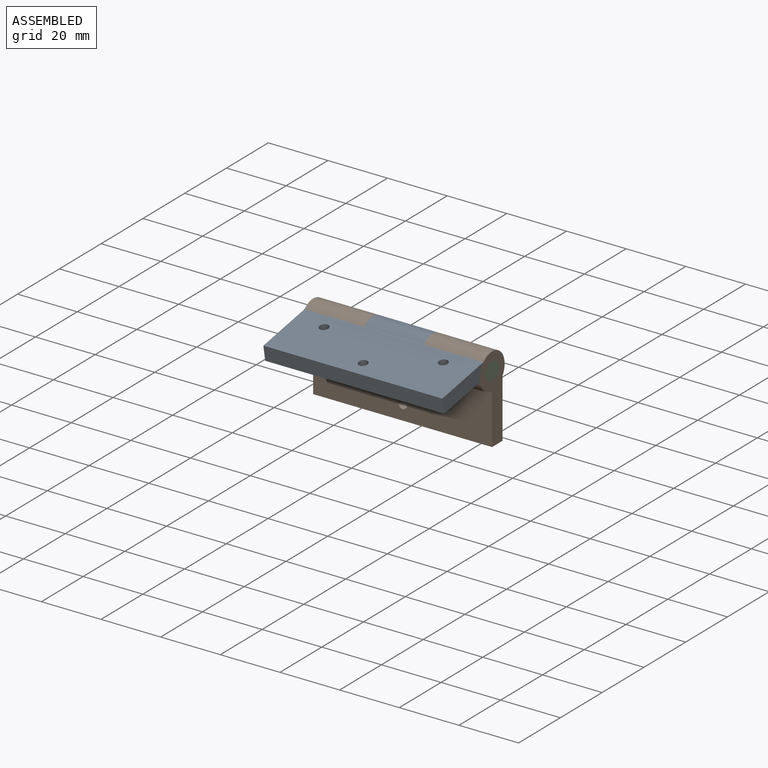
[diagram: assembled view]
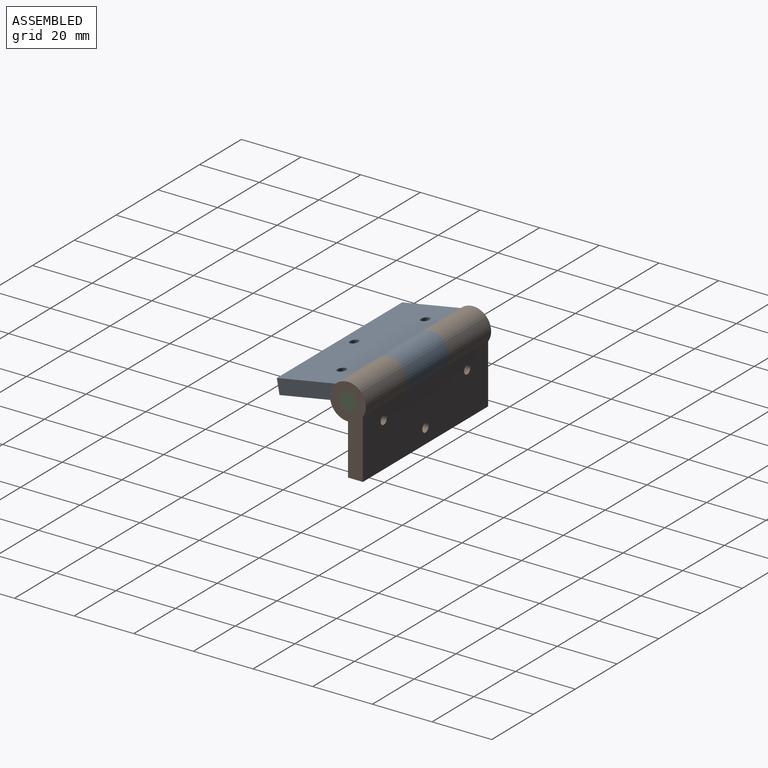
[diagram: assembled view, second angle]
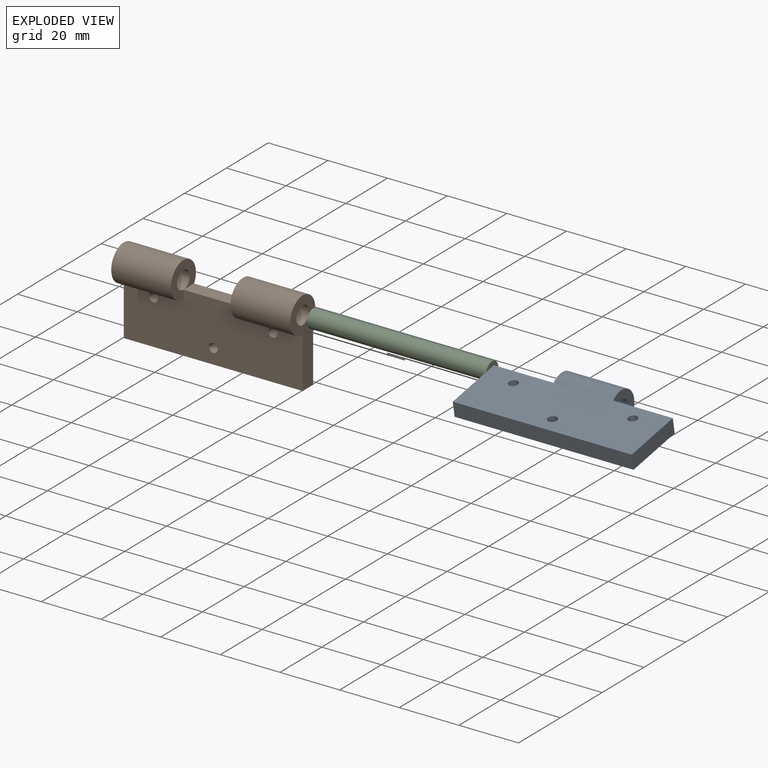
[diagram: exploded view]
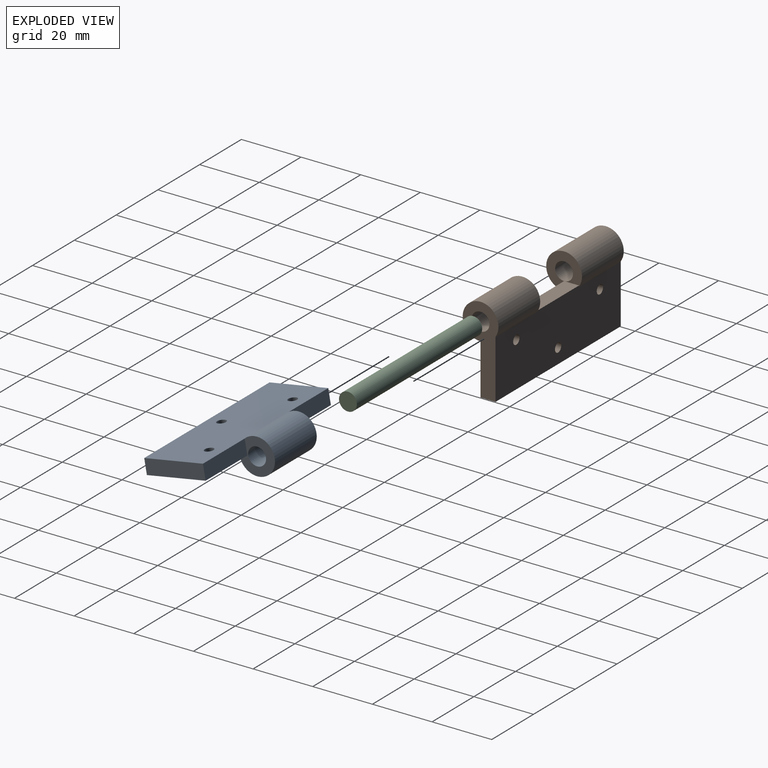
[diagram: exploded view, second angle]
ASSEMBLY  parts=3 mates=2
PART A: 14 faces, bbox 60x12x29.3 mm
  f0: plane 20x5mm, normal (0,0,1), area 100mm2, adj f1,f3,f4,f7
  f1: plane 20x5mm, normal (-1,0,0), area 100mm2, adj f0,f2,f3,f4
  f2: plane 60x5mm, normal (0,0,-1), area 300mm2, adj f1,f3,f4,f9
  f3: plane 60x20mm, normal (0,-1,0), area 1125.1mm2, adj f0,f1,f2,f5,f7,f8,f9,f10
  f4: plane 60x20mm, normal (0,1,0), area 1178.8mm2, adj f0,f1,f2,f5,f8,f9,f11,f12
  f5: cylinder r=6mm len=20mm, axis (1,0,0), area 635.8mm2, adj f3,f4,f7,f10
  f6: cylinder r=3mm len=20mm, axis (1,0,0), area 377mm2, adj f7,f10
  f7: plane 12x12mm, normal (-1,0,0), area 75.4mm2, adj f0,f3,f5,f6
  f8: plane 20x5mm, normal (0,0,1), area 100mm2, adj f3,f4,f9,f10
  f9: plane 20x5mm, normal (1,0,0), area 100mm2, adj f2,f3,f4,f8
  f10: plane 12x12mm, normal (1,0,0), area 75.4mm2, adj f3,f5,f6,f8
  f11: cylinder r=1.5mm len=5mm, axis (0,1,0), area 47.1mm2, adj f3,f4
  f12: cylinder r=1.5mm len=5mm, axis (0,1,0), area 47.1mm2, adj f3,f4
  f13: cylinder r=1.5mm len=5mm, axis (0,1,0), area 47.1mm2, adj f3,f4
PART B: 15 faces, bbox 60x12x29 mm
  f0: plane 20x5mm, normal (0,0,1), area 100mm2, adj f3,f4,f7,f11
  f1: plane 29x12mm, normal (-1,0,0), area 173.8mm2, adj f2,f3,f4,f5,f6
  f2: plane 60x5mm, normal (0,0,-1), area 300mm2, adj f1,f3,f4,f8
  f3: plane 60x20mm, normal (0,-1,0), area 1058.8mm2, adj f0,f1,f2,f6,f7,f8,f10,f11
  f4: plane 60x20mm, normal (0,1,0), area 1166.1mm2, adj f0,f1,f2,f6,f7,f8,f10,f11
  f5: cylinder r=3mm len=20mm, axis (-1,0,0), area 377mm2, adj f1,f7
  f6: cylinder r=6mm len=20mm, axis (-1,0,0), area 635.8mm2, adj f1,f3,f4,f7
  f7: plane 12x12mm, normal (1,0,0), area 73.8mm2, adj f0,f3,f4,f5,f6
  f8: plane 29x12mm, normal (1,0,0), area 173.8mm2, adj f2,f3,f4,f9,f10
  f9: cylinder r=3mm len=20mm, axis (1,0,0), area 377mm2, adj f8,f11
  f10: cylinder r=6mm len=20mm, axis (1,0,0), area 635.8mm2, adj f3,f4,f8,f11
  f11: plane 12x12mm, normal (-1,0,0), area 73.8mm2, adj f0,f3,f4,f9,f10
  f12: cylinder r=1.5mm len=5mm, axis (0,1,0), area 47.1mm2, adj f3,f4
  f13: cylinder r=1.5mm len=5mm, axis (0,1,0), area 47.1mm2, adj f3,f4
  f14: cylinder r=1.5mm len=5mm, axis (0,1,0), area 47.1mm2, adj f3,f4
PART C: 3 faces, bbox 6x60x6 mm
  f0: cylinder r=3mm len=60mm, axis (0,1,0), area 1131mm2, adj f1,f2
  f1: plane 6x6mm, normal (0,-1,0), area 28.3mm2, adj f0
  f2: plane 6x6mm, normal (0,1,0), area 28.3mm2, adj f0
PLACE A rot(axis=(0,0.64,0.77),180deg) t=(-37.93,-69.62,49.53)mm
PLACE B t=(-43.68,-63.62,36.51)mm fixed
PLACE C rot(axis=(0.45,0.45,-0.77),104.6deg) t=(-14.87,-72.44,9.76)mm
MATE revolute B.f5 <-> C.f0  axis (1,0,0) through (-14.87,-68.62,44.63)mm
MATE revolute A.f5 <-> C.f0  axis (-1,0,0) through (-44.87,-68.62,44.63)mm
